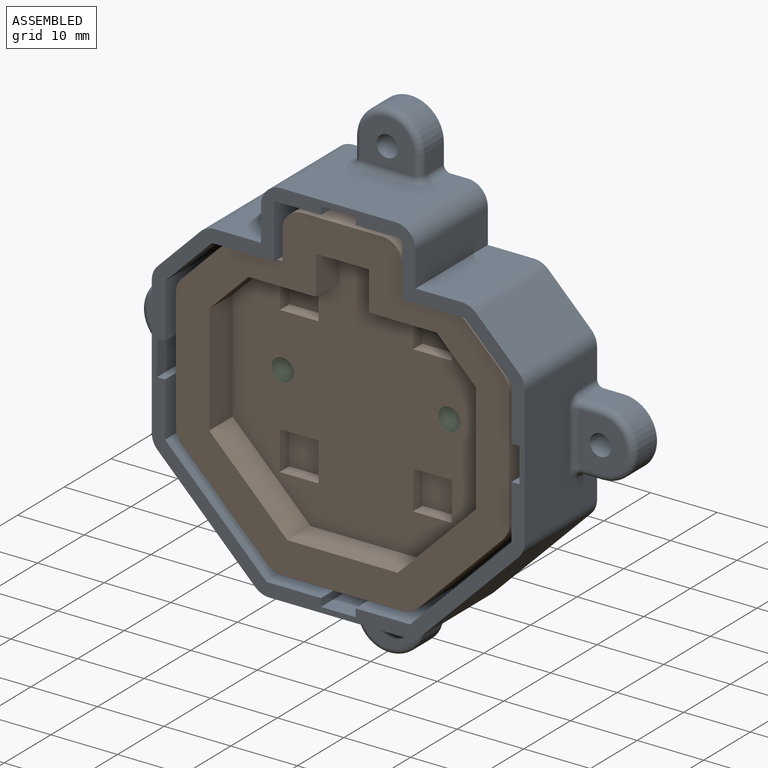
[diagram: assembled view]
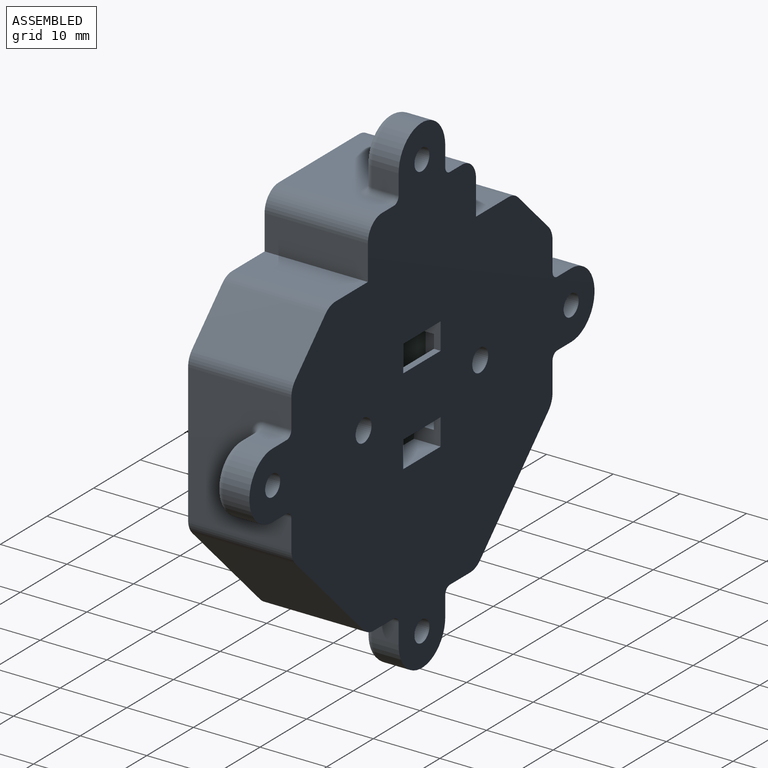
[diagram: assembled view, second angle]
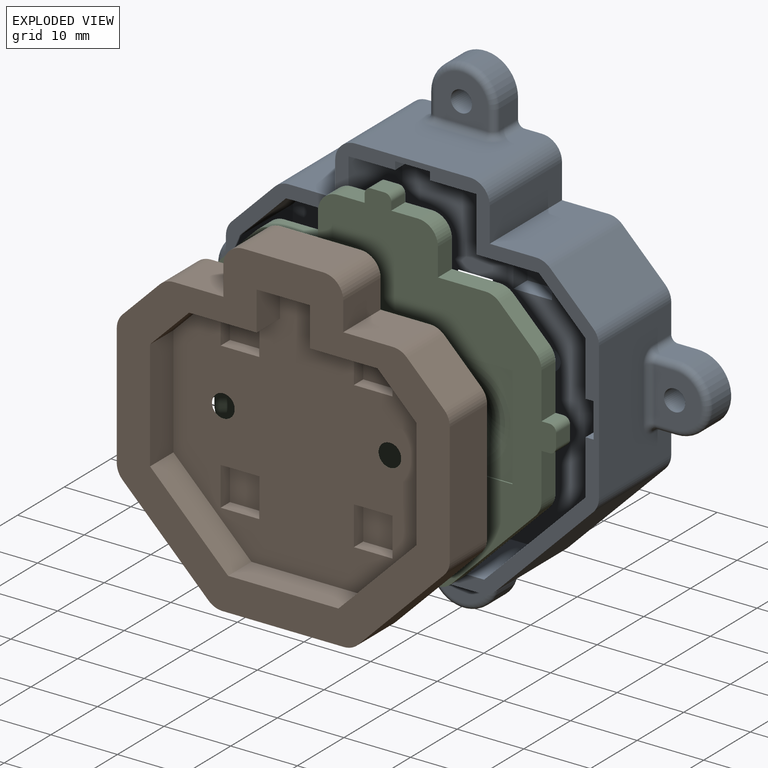
[diagram: exploded view]
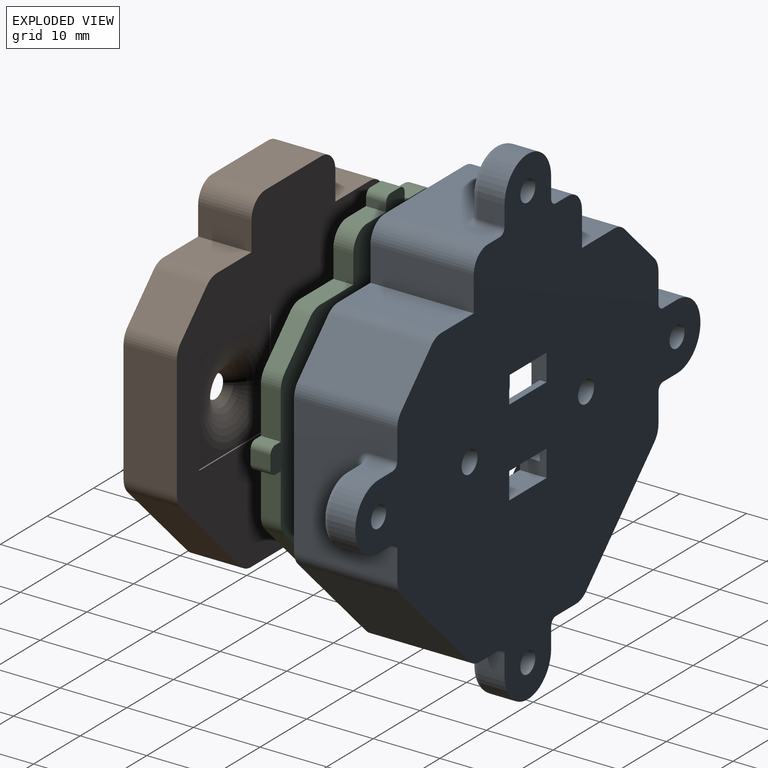
[diagram: exploded view, second angle]
ASSEMBLY  parts=3 mates=4
PART A: 142 faces, bbox 74.8x15.5x74.8 mm
  f0: plane 54.4x54.4mm, normal (0,-1,0), area 1824.8mm2, adj f1,f2,f3,f4,f8,f9,f22,f24
  f1: plane 11.5x7mm, normal (0,0,-1), area 80.5mm2, adj f0,f5,f31,f121
  f2: plane 11.5x8.17mm, normal (-1,0,0), area 93.9mm2, adj f0,f5,f35,f110
  f3: plane 11.5x8.17mm, normal (0,0,1), area 93.9mm2, adj f0,f5,f37,f115
  f4: plane 11.5x8.17mm, normal (1,0,0), area 93.9mm2, adj f0,f5,f39,f118
  f5: plane 56x56mm, normal (0,-1,0), area 346.7mm2, adj f1,f2,f3,f4,f11,f12,f13,f14
  f6: plane 8x1mm, normal (0,0,-1), area 8mm2, adj f10,f25,f27,f47
  f7: plane 8x1mm, normal (0,0,1), area 8mm2, adj f8,f9,f10,f47
  f8: plane 4x4mm, normal (-1,0,0), area 10mm2, adj f0,f7,f10,f28,f43,f47
  f9: plane 4x4mm, normal (1,0,0), area 10mm2, adj f0,f7,f10,f28,f44,f47
  f10: plane 74x74mm, normal (0,1,0), area 2729.7mm2, adj f6,f7,f8,f9,f11,f12,f13,f14
  f11: plane 15.5x6.96mm, normal (0,0,1), area 107.9mm2, adj f5,f10,f12,f55
  f12: plane 15.5x5.2mm, normal (1,0,0), area 80.6mm2, adj f5,f10,f11,f57
  f13: plane 17.2x15.5mm, normal (0,0,1), area 196.3mm2, adj f5,f10,f56,f57,f94,f96,f98,f100
  f14: plane 15.5x5.2mm, normal (-1,0,0), area 80.6mm2, adj f5,f10,f15,f56
  f15: plane 15.5x6.96mm, normal (0,0,1), area 107.9mm2, adj f5,f10,f14,f48
  f16: plane 15.5x6.44mm, normal (-0.71,0,0.71), area 141.2mm2, adj f5,f10,f48,f49
  f17: plane 20.71x15.5mm, normal (-1,0,0), area 250.7mm2, adj f5,f10,f49,f50,f102,f104,f106,f108
  f18: plane 15.5x14.64mm, normal (-0.71,0,-0.71), area 321mm2, adj f5,f10,f50,f51
  f19: plane 20.71x15.5mm, normal (0,0,-1), area 250.7mm2, adj f5,f10,f51,f52,f78,f80,f82,f84
  f20: plane 15.5x14.64mm, normal (0.71,0,-0.71), area 321mm2, adj f5,f10,f52,f53
  f21: plane 20.71x15.5mm, normal (1,0,0), area 250.7mm2, adj f5,f10,f53,f54,f86,f88,f90,f92
  f22: cylinder r=1.7mm len=4mm, axis (0,1,0), area 42.7mm2, adj f0,f10
  f23: plane 15.5x6.44mm, normal (0.71,0,0.71), area 141.2mm2, adj f5,f10,f54,f55
  f24: cylinder r=1.7mm len=4mm, axis (0,1,0), area 42.7mm2, adj f0,f10
  f25: plane 4x4mm, normal (1,0,0), area 10mm2, adj f0,f6,f10,f26,f46,f47
  f26: plane 8x4mm, normal (0,0,1), area 32mm2, adj f0,f10,f25,f27
  f27: plane 4x4mm, normal (-1,0,0), area 10mm2, adj f0,f6,f10,f26,f41,f47
  f28: plane 8x4mm, normal (0,0,-1), area 32mm2, adj f0,f8,f9,f10
  f29: plane 11.5x7.03mm, normal (0.71,0,-0.71), area 114.3mm2, adj f0,f5,f30,f40
  f30: plane 11.5x9.37mm, normal (0,0,-1), area 107.8mm2, adj f0,f5,f29,f31
  f31: plane 11.5x8.2mm, normal (1,0,0), area 94.3mm2, adj f0,f1,f5,f30
  f32: plane 11.5x7mm, normal (0,0,-1), area 80.5mm2, adj f0,f5,f33,f119
  f33: plane 11.5x8.2mm, normal (-1,0,0), area 94.3mm2, adj f0,f5,f32,f34
  f34: plane 11.5x9.37mm, normal (0,0,-1), area 107.8mm2, adj f0,f5,f33,f35
  f35: plane 11.5x7.03mm, normal (-0.71,0,-0.71), area 114.3mm2, adj f0,f2,f5,f34
  f36: plane 11.5x8.17mm, normal (-1,0,0), area 93.9mm2, adj f0,f5,f37,f111
  f37: plane 15.23x15.23mm, normal (-0.71,0,0.71), area 247.7mm2, adj f0,f3,f5,f36
  f38: plane 11.5x8.17mm, normal (0,0,1), area 93.9mm2, adj f0,f5,f39,f113
  f39: plane 15.23x15.23mm, normal (0.71,0,0.71), area 247.7mm2, adj f0,f4,f5,f38
  f40: plane 11.5x8.17mm, normal (1,0,0), area 93.9mm2, adj f0,f5,f29,f116
  f41: plane 3x2.5mm, normal (0,0,1), area 7.5mm2, adj f0,f27,f42,f47
  f42: plane 13x3mm, normal (-1,0,0), area 39mm2, adj f0,f41,f43,f47
  f43: plane 3x2.5mm, normal (0,0,-1), area 7.5mm2, adj f0,f8,f42,f47
  f44: plane 3x2.5mm, normal (0,0,-1), area 7.5mm2, adj f0,f9,f45,f47
  f45: plane 13x3mm, normal (1,0,0), area 39mm2, adj f0,f44,f46,f47
  f46: plane 3x2.5mm, normal (0,0,1), area 7.5mm2, adj f0,f25,f45,f47
  f47: plane 13x13mm, normal (0,-1,0), area 137mm2, adj f6,f7,f8,f9,f25,f27,f41,f42
  f48: cylinder r=3mm len=15.5mm, axis (0,-1,0), area 36.5mm2, adj f5,f10,f15,f16
  f49: cylinder r=3mm len=15.5mm, axis (0,1,0), area 36.5mm2, adj f5,f10,f16,f17
  f50: cylinder r=3mm len=15.5mm, axis (0,1,0), area 36.5mm2, adj f5,f10,f17,f18
  f51: cylinder r=3mm len=15.5mm, axis (0,1,0), area 36.5mm2, adj f5,f10,f18,f19
  f52: cylinder r=3mm len=15.5mm, axis (0,1,0), area 36.5mm2, adj f5,f10,f19,f20
  f53: cylinder r=3mm len=15.5mm, axis (0,1,0), area 36.5mm2, adj f5,f10,f20,f21
  f54: cylinder r=3mm len=15.5mm, axis (0,1,0), area 36.5mm2, adj f5,f10,f21,f23
  f55: cylinder r=3mm len=15.5mm, axis (0,-1,0), area 36.5mm2, adj f5,f10,f11,f23
  f56: cylinder r=3mm len=15.5mm, axis (0,1,0), area 73mm2, adj f5,f10,f13,f14
  f57: cylinder r=3mm len=15.5mm, axis (0,-1,0), area 73mm2, adj f5,f10,f12,f13
  f58: plane 4x3mm, normal (0,0,1), area 12mm2, adj f10,f59,f107,f109
  f59: cylinder r=5mm len=10mm, axis (0,1,0), area 62.8mm2, adj f10,f58,f60,f105
  f60: plane 4x3mm, normal (0,0,-1), area 12mm2, adj f10,f59,f102,f103
  f61: cylinder r=1.6mm len=5mm, axis (0,1,0), area 50.3mm2, adj f10,f62
  f62: plane 8x7mm, normal (0,-1,0), area 41.1mm2, adj f61,f103,f105,f106,f107
  f63: plane 4x3mm, normal (-1,0,0), area 12mm2, adj f10,f64,f83,f85
  f64: cylinder r=5mm len=10mm, axis (0,1,0), area 62.8mm2, adj f10,f63,f65,f81
  f65: plane 4x3mm, normal (1,0,0), area 12mm2, adj f10,f64,f78,f79
  f66: cylinder r=1.6mm len=5mm, axis (0,1,0), area 50.3mm2, adj f10,f67
  f67: plane 8x7mm, normal (0,-1,0), area 41.1mm2, adj f66,f79,f81,f82,f83
  f68: plane 4x3mm, normal (0,0,-1), area 12mm2, adj f10,f69,f91,f93
  f69: cylinder r=5mm len=10mm, axis (0,1,0), area 62.8mm2, adj f10,f68,f70,f89
  f70: plane 4x3mm, normal (0,0,1), area 12mm2, adj f10,f69,f86,f87
  f71: cylinder r=1.6mm len=5mm, axis (0,1,0), area 50.3mm2, adj f10,f72
  f72: plane 8x7mm, normal (0,-1,0), area 41.1mm2, adj f71,f87,f89,f90,f91
  f73: plane 4x3mm, normal (1,0,0), area 12mm2, adj f10,f74,f99,f101
  f74: cylinder r=5mm len=10mm, axis (0,1,0), area 62.8mm2, adj f10,f73,f75,f97
  f75: plane 4x3mm, normal (-1,0,0), area 12mm2, adj f10,f74,f94,f95
  f76: cylinder r=1.6mm len=5mm, axis (0,1,0), area 50.3mm2, adj f10,f77
  f77: plane 8x7mm, normal (0,-1,0), area 41.1mm2, adj f76,f95,f97,f98,f99
  f78: cylinder r=1mm len=4mm, axis (0,-1,0), area 6.3mm2, adj f10,f19,f65,f80
  f79: cylinder r=1mm len=3mm, axis (0,0,-1), area 4.7mm2, adj f65,f67,f80,f81
  f80: torus R=2mm, axis (0,0,1), area 3.4mm2, adj f19,f78,f79,f82
  f81: torus R=4mm, axis (0,-1,0), area 22.9mm2, adj f64,f67,f79,f83
  f82: cylinder r=1mm len=8mm, axis (1,0,0), area 12.6mm2, adj f19,f67,f80,f84
  f83: cylinder r=1mm len=3mm, axis (0,0,1), area 4.7mm2, adj f63,f67,f81,f84
  f84: torus R=2mm, axis (0,0,1), area 3.4mm2, adj f19,f82,f83,f85
  f85: cylinder r=1mm len=4mm, axis (0,1,0), area 6.3mm2, adj f10,f19,f63,f84
  f86: cylinder r=1mm len=4mm, axis (0,-1,0), area 6.3mm2, adj f10,f21,f70,f88
  f87: cylinder r=1mm len=3mm, axis (1,0,0), area 4.7mm2, adj f70,f72,f88,f89
  f88: torus R=2mm, axis (-1,0,0), area 3.4mm2, adj f21,f86,f87,f90
  f89: torus R=4mm, axis (0,-1,0), area 22.9mm2, adj f69,f72,f87,f91
  f90: cylinder r=1mm len=8mm, axis (0,0,1), area 12.6mm2, adj f21,f72,f88,f92
  f91: cylinder r=1mm len=3mm, axis (-1,0,0), area 4.7mm2, adj f68,f72,f89,f92
  f92: torus R=2mm, axis (-1,0,0), area 3.4mm2, adj f21,f90,f91,f93
  f93: cylinder r=1mm len=4mm, axis (0,1,0), area 6.3mm2, adj f10,f21,f68,f92
  f94: cylinder r=1mm len=4mm, axis (0,-1,0), area 6.3mm2, adj f10,f13,f75,f96
  f95: cylinder r=1mm len=3mm, axis (0,0,1), area 4.7mm2, adj f75,f77,f96,f97
  f96: torus R=2mm, axis (0,0,-1), area 3.4mm2, adj f13,f94,f95,f98
  f97: torus R=4mm, axis (0,-1,0), area 22.9mm2, adj f74,f77,f95,f99
  f98: cylinder r=1mm len=8mm, axis (-1,0,0), area 12.6mm2, adj f13,f77,f96,f100
  f99: cylinder r=1mm len=3mm, axis (0,0,-1), area 4.7mm2, adj f73,f77,f97,f100
  f100: torus R=2mm, axis (0,0,-1), area 3.4mm2, adj f13,f98,f99,f101
  f101: cylinder r=1mm len=4mm, axis (0,1,0), area 6.3mm2, adj f10,f13,f73,f100
  f102: cylinder r=1mm len=4mm, axis (0,-1,0), area 6.3mm2, adj f10,f17,f60,f104
  f103: cylinder r=1mm len=3mm, axis (-1,0,0), area 4.7mm2, adj f60,f62,f104,f105
  f104: torus R=2mm, axis (1,0,0), area 3.4mm2, adj f17,f102,f103,f106
  f105: torus R=4mm, axis (0,-1,0), area 22.9mm2, adj f59,f62,f103,f107
  f106: cylinder r=1mm len=8mm, axis (0,0,-1), area 12.6mm2, adj f17,f62,f104,f108
  f107: cylinder r=1mm len=3mm, axis (1,0,0), area 4.7mm2, adj f58,f62,f105,f108
  f108: torus R=2mm, axis (1,0,0), area 3.4mm2, adj f17,f106,f107,f109
  f109: cylinder r=1mm len=4mm, axis (0,1,0), area 6.3mm2, adj f10,f17,f58,f108
  f110: plane 11.5x1.2mm, normal (0,0,-1), area 13.8mm2, adj f0,f2,f5,f112
  f111: plane 11.5x1.2mm, normal (0,0,1), area 13.8mm2, adj f0,f5,f36,f112
  f112: plane 11.5x5.2mm, normal (-1,0,0), area 59.8mm2, adj f0,f5,f110,f111
  f113: plane 11.5x1.2mm, normal (1,0,0), area 13.8mm2, adj f0,f5,f38,f114
  f114: plane 11.5x5.2mm, normal (0,0,1), area 59.8mm2, adj f0,f5,f113,f115
  f115: plane 11.5x1.2mm, normal (-1,0,0), area 13.8mm2, adj f0,f3,f5,f114
  f116: plane 11.5x1.2mm, normal (0,0,-1), area 13.8mm2, adj f0,f5,f40,f117
  f117: plane 11.5x5.2mm, normal (1,0,0), area 59.8mm2, adj f0,f5,f116,f118
  f118: plane 11.5x1.2mm, normal (0,0,1), area 13.8mm2, adj f0,f4,f5,f117
  f119: plane 11.5x1.2mm, normal (-1,0,0), area 13.8mm2, adj f0,f5,f32,f120
  f120: plane 11.5x5.2mm, normal (0,0,-1), area 59.8mm2, adj f0,f5,f119,f121
  f121: plane 11.5x1.2mm, normal (1,0,0), area 13.8mm2, adj f0,f1,f5,f120
  f122: plane 5.8x3mm, normal (0,0,1), area 17.4mm2, adj f0,f123,f125,f126
  f123: plane 5.8x3mm, normal (-1,0,0), area 17.4mm2, adj f0,f122,f124,f126
  f124: plane 5.8x3mm, normal (0,0,-1), area 17.4mm2, adj f0,f123,f125,f126
  f125: plane 5.8x3mm, normal (1,0,0), area 17.4mm2, adj f0,f122,f124,f126
  f126: plane 5.8x5.8mm, normal (0,-1,0), area 33.6mm2, adj f122,f123,f124,f125
  f127: plane 5.8x3mm, normal (0,0,1), area 17.4mm2, adj f0,f128,f130,f131
  f128: plane 5.8x3mm, normal (-1,0,0), area 17.4mm2, adj f0,f127,f129,f131
  f129: plane 5.8x3mm, normal (0,0,-1), area 17.4mm2, adj f0,f128,f130,f131
  f130: plane 5.8x3mm, normal (1,0,0), area 17.4mm2, adj f0,f127,f129,f131
  f131: plane 5.8x5.8mm, normal (0,-1,0), area 33.6mm2, adj f127,f128,f129,f130
  f132: plane 5.8x3mm, normal (0,0,1), area 17.4mm2, adj f0,f133,f135,f136
  f133: plane 5.8x3mm, normal (-1,0,0), area 17.4mm2, adj f0,f132,f134,f136
  f134: plane 5.8x3mm, normal (0,0,-1), area 17.4mm2, adj f0,f133,f135,f136
  f135: plane 5.8x3mm, normal (1,0,0), area 17.4mm2, adj f0,f132,f134,f136
  f136: plane 5.8x5.8mm, normal (0,-1,0), area 33.6mm2, adj f132,f133,f134,f135
  f137: plane 5.8x3mm, normal (0,0,1), area 17.4mm2, adj f0,f138,f140,f141
  f138: plane 5.8x3mm, normal (-1,0,0), area 17.4mm2, adj f0,f137,f139,f141
  f139: plane 5.8x3mm, normal (0,0,-1), area 17.4mm2, adj f0,f138,f140,f141
  f140: plane 5.8x3mm, normal (1,0,0), area 17.4mm2, adj f0,f137,f139,f141
  f141: plane 5.8x5.8mm, normal (0,-1,0), area 33.6mm2, adj f137,f138,f139,f140
PART B: 69 faces, bbox 50x8x50 mm
  f0: plane 40x40mm, normal (0,-1,0), area 1088.3mm2, adj f14,f15,f16,f17,f18,f19,f20,f21
  f1: plane 50x50mm, normal (0,1,0), area 1517.9mm2, adj f2,f3,f4,f5,f6,f7,f8,f9
  f2: plane 8x7.44mm, normal (0,0,1), area 59.5mm2, adj f1,f13,f26,f37
  f3: plane 8x5.57mm, normal (-0.71,0,0.71), area 63mm2, adj f1,f26,f37,f38
  f4: plane 18.23x8mm, normal (-1,0,0), area 145.8mm2, adj f1,f26,f38,f39
  f5: plane 12.89x12.89mm, normal (-0.71,0,-0.71), area 145.8mm2, adj f1,f26,f39,f40
  f6: plane 18.23x8mm, normal (0,0,-1), area 145.8mm2, adj f1,f26,f40,f41
  f7: plane 12.89x12.89mm, normal (0.71,0,-0.71), area 145.8mm2, adj f1,f26,f41,f42
  f8: plane 18.23x8mm, normal (1,0,0), area 145.8mm2, adj f1,f26,f42,f43
  f9: plane 8x5.57mm, normal (0.71,0,0.71), area 63mm2, adj f1,f26,f43,f44
  f10: plane 8x7.44mm, normal (0,0,1), area 59.5mm2, adj f1,f11,f26,f44
  f11: plane 8x4.32mm, normal (1,0,0), area 34.6mm2, adj f1,f10,f26,f45
  f12: plane 12x8mm, normal (0,0,1), area 96mm2, adj f1,f26,f45,f46
  f13: plane 8x4.32mm, normal (-1,0,0), area 34.6mm2, adj f1,f2,f26,f46
  f14: plane 5.86x5mm, normal (-1,0,0), area 29.3mm2, adj f0,f15,f25,f26
  f15: plane 10.14x5mm, normal (0,0,-1), area 50.7mm2, adj f0,f14,f16,f26
  f16: plane 5.86x5.86mm, normal (-0.71,0,-0.71), area 41.4mm2, adj f0,f15,f17,f26
  f17: plane 16.57x5mm, normal (-1,0,0), area 82.8mm2, adj f0,f16,f18,f26
  f18: plane 11.72x11.72mm, normal (-0.71,0,0.71), area 82.8mm2, adj f0,f17,f19,f26
  f19: plane 16.57x5mm, normal (0,0,1), area 82.8mm2, adj f0,f18,f20,f26
  f20: plane 11.72x11.72mm, normal (0.71,0,0.71), area 82.8mm2, adj f0,f19,f21,f26
  f21: plane 16.57x5mm, normal (1,0,0), area 82.8mm2, adj f0,f20,f22,f26
  f22: plane 5.86x5.86mm, normal (0.71,0,-0.71), area 41.4mm2, adj f0,f21,f23,f26
  f23: plane 10.14x5mm, normal (0,0,-1), area 50.7mm2, adj f0,f22,f24,f26
  f24: plane 5.86x5mm, normal (1,0,0), area 29.3mm2, adj f0,f23,f25,f26
  f25: plane 8x5mm, normal (0,0,-1), area 40mm2, adj f0,f14,f24,f26
  f26: plane 50x50mm, normal (0,-1,0), area 751.2mm2, adj f2,f3,f4,f5,f6,f7,f8,f9
  f27: plane 15.4x0.2mm, normal (0,0,-1), area 3.1mm2, adj f1,f28,f30,f31
  f28: plane 15.4x0.2mm, normal (-1,0,0), area 3.1mm2, adj f1,f27,f29,f31
  f29: plane 15.4x0.2mm, normal (0,0,1), area 3.1mm2, adj f1,f28,f30,f31
  f30: plane 15.4x0.2mm, normal (1,0,0), area 3.1mm2, adj f1,f27,f29,f31
  f31: plane 15.4x15.4mm, normal (0,1,0), area 69.7mm2, adj f27,f28,f29,f30,f67
  f32: plane 15.4x0.2mm, normal (0,0,-1), area 3.1mm2, adj f1,f33,f35,f36
  f33: plane 15.4x0.2mm, normal (-1,0,0), area 3.1mm2, adj f1,f32,f34,f36
  f34: plane 15.4x0.2mm, normal (0,0,1), area 3.1mm2, adj f1,f33,f35,f36
  f35: plane 15.4x0.2mm, normal (1,0,0), area 3.1mm2, adj f1,f32,f34,f36
  f36: plane 15.4x15.4mm, normal (0,1,0), area 69.7mm2, adj f32,f33,f34,f35,f68
  f37: cylinder r=3mm len=8mm, axis (0,-1,0), area 18.8mm2, adj f1,f2,f3,f26
  f38: cylinder r=3mm len=8mm, axis (0,1,0), area 18.8mm2, adj f1,f3,f4,f26
  f39: cylinder r=3mm len=8mm, axis (0,1,0), area 18.8mm2, adj f1,f4,f5,f26
  f40: cylinder r=3mm len=8mm, axis (0,1,0), area 18.8mm2, adj f1,f5,f6,f26
  f41: cylinder r=3mm len=8mm, axis (0,1,0), area 18.8mm2, adj f1,f6,f7,f26
  f42: cylinder r=3mm len=8mm, axis (0,1,0), area 18.8mm2, adj f1,f7,f8,f26
  f43: cylinder r=3mm len=8mm, axis (0,1,0), area 18.8mm2, adj f1,f8,f9,f26
  f44: cylinder r=3mm len=8mm, axis (0,-1,0), area 18.8mm2, adj f1,f9,f10,f26
  f45: cylinder r=3mm len=8mm, axis (0,1,0), area 37.7mm2, adj f1,f11,f12,f26
  f46: cylinder r=3mm len=8mm, axis (0,-1,0), area 37.7mm2, adj f1,f12,f13,f26
  f47: plane 5.8x2mm, normal (0,0,-1), area 11.6mm2, adj f0,f48,f50,f51
  f48: plane 5.8x2mm, normal (1,0,0), area 11.6mm2, adj f0,f47,f49,f51
  f49: plane 5.8x2mm, normal (0,0,1), area 11.6mm2, adj f0,f48,f50,f51
  f50: plane 5.8x2mm, normal (-1,0,0), area 11.6mm2, adj f0,f47,f49,f51
  f51: plane 5.8x5.8mm, normal (0,-1,0), area 33.6mm2, adj f47,f48,f49,f50
  f52: plane 5.8x2mm, normal (0,0,-1), area 11.6mm2, adj f0,f53,f55,f56
  f53: plane 5.8x2mm, normal (1,0,0), area 11.6mm2, adj f0,f52,f54,f56
  f54: plane 5.8x2mm, normal (0,0,1), area 11.6mm2, adj f0,f53,f55,f56
  f55: plane 5.8x2mm, normal (-1,0,0), area 11.6mm2, adj f0,f52,f54,f56
  f56: plane 5.8x5.8mm, normal (0,-1,0), area 33.6mm2, adj f52,f53,f54,f55
  f57: plane 5.8x2mm, normal (0,0,-1), area 11.6mm2, adj f0,f58,f60,f61
  f58: plane 5.8x2mm, normal (1,0,0), area 11.6mm2, adj f0,f57,f59,f61
  f59: plane 5.8x2mm, normal (0,0,1), area 11.6mm2, adj f0,f58,f60,f61
  f60: plane 5.8x2mm, normal (-1,0,0), area 11.6mm2, adj f0,f57,f59,f61
  f61: plane 5.8x5.8mm, normal (0,-1,0), area 33.6mm2, adj f57,f58,f59,f60
  f62: plane 5.8x2mm, normal (0,0,1), area 11.6mm2, adj f0,f63,f65,f66
  f63: plane 5.8x2mm, normal (-1,0,0), area 11.6mm2, adj f0,f62,f64,f66
  f64: plane 5.8x2mm, normal (0,0,-1), area 11.6mm2, adj f0,f63,f65,f66
  f65: plane 5.8x2mm, normal (1,0,0), area 11.6mm2, adj f0,f62,f64,f66
  f66: plane 5.8x5.8mm, normal (0,-1,0), area 33.6mm2, adj f62,f63,f64,f65
  f67: torus R=7.3mm, axis (0,1,0), area 174.6mm2, adj f0,f31
  f68: torus R=7.3mm, axis (0,1,0), area 174.6mm2, adj f0,f36
PART C: 80 faces, bbox 53.5x7.2x53.5 mm
  f0: plane 53.5x53.5mm, normal (0,-1,0), area 1482.4mm2, adj f2,f3,f4,f5,f6,f7,f8,f9
  f1: plane 53.5x53.5mm, normal (0,1,0), area 1804mm2, adj f2,f3,f4,f5,f6,f7,f8,f9
  f2: plane 6.93x3mm, normal (-1,0,0), area 20.8mm2, adj f0,f1,f3,f57
  f3: plane 3x1.2mm, normal (0,0,1), area 3.6mm2, adj f0,f1,f2,f72
  f4: plane 3x2mm, normal (-1,0,0), area 6mm2, adj f0,f1,f72,f73
  f5: plane 3x1.2mm, normal (0,0,-1), area 3.6mm2, adj f0,f1,f6,f73
  f6: plane 6.93x3mm, normal (-1,0,0), area 20.8mm2, adj f0,f1,f5,f50
  f7: plane 12.62x12.62mm, normal (-0.71,0,-0.71), area 53.6mm2, adj f0,f1,f50,f51
  f8: plane 6.93x3mm, normal (0,0,-1), area 20.8mm2, adj f0,f1,f9,f51
  f9: plane 3x1.2mm, normal (-1,0,0), area 3.6mm2, adj f0,f1,f8,f78
  f10: plane 3x2mm, normal (0,0,-1), area 6mm2, adj f0,f1,f78,f79
  f11: plane 3x1.2mm, normal (1,0,0), area 3.6mm2, adj f0,f1,f12,f79
  f12: plane 6.93x3mm, normal (0,0,-1), area 20.8mm2, adj f0,f1,f11,f52
  f13: plane 12.62x12.62mm, normal (0.71,0,-0.71), area 53.6mm2, adj f0,f1,f52,f53
  f14: plane 6.93x3mm, normal (1,0,0), area 20.8mm2, adj f0,f1,f15,f53
  f15: plane 3x1.2mm, normal (0,0,-1), area 3.6mm2, adj f0,f1,f14,f74
  f16: plane 3x2mm, normal (1,0,0), area 6mm2, adj f0,f1,f74,f75
  f17: plane 3x1.2mm, normal (0,0,1), area 3.6mm2, adj f0,f1,f18,f75
  f18: plane 6.93x3mm, normal (1,0,0), area 20.8mm2, adj f0,f1,f17,f54
  f19: plane 5.43x5.43mm, normal (0.71,0,0.71), area 23.1mm2, adj f0,f1,f54,f55
  f20: plane 7.12x3mm, normal (0,0,1), area 21.4mm2, adj f0,f1,f21,f55
  f21: plane 4.19x3mm, normal (1,0,0), area 12.6mm2, adj f0,f1,f20,f59
  f22: plane 4x3mm, normal (0,0,1), area 12mm2, adj f0,f1,f23,f59
  f23: plane 3x1.2mm, normal (1,0,0), area 3.6mm2, adj f0,f1,f22,f76
  f24: plane 3x2mm, normal (0,0,1), area 6mm2, adj f0,f1,f76,f77
  f25: plane 3x1.2mm, normal (-1,0,0), area 3.6mm2, adj f0,f1,f26,f77
  f26: plane 4x3mm, normal (0,0,1), area 12mm2, adj f0,f1,f25,f58
  f27: plane 4.19x3mm, normal (-1,0,0), area 12.6mm2, adj f0,f1,f28,f58
  f28: plane 7.12x3mm, normal (0,0,1), area 21.4mm2, adj f0,f1,f27,f56
  f29: plane 5.43x5.43mm, normal (-0.71,0,0.71), area 23.1mm2, adj f0,f1,f56,f57
  f30: plane 5.8x2mm, normal (0,0,1), area 11.6mm2, adj f1,f31,f33,f34
  f31: plane 5.8x2mm, normal (1,0,0), area 11.6mm2, adj f1,f30,f32,f34
  f32: plane 5.8x2mm, normal (0,0,-1), area 11.6mm2, adj f1,f31,f33,f34
  f33: plane 5.8x2mm, normal (-1,0,0), area 11.6mm2, adj f1,f30,f32,f34
  f34: plane 5.8x5.8mm, normal (0,1,0), area 33.6mm2, adj f30,f31,f32,f33
  f35: plane 5.8x2mm, normal (0,0,1), area 11.6mm2, adj f1,f36,f38,f39
  f36: plane 5.8x2mm, normal (1,0,0), area 11.6mm2, adj f1,f35,f37,f39
  f37: plane 5.8x2mm, normal (0,0,-1), area 11.6mm2, adj f1,f36,f38,f39
  f38: plane 5.8x2mm, normal (-1,0,0), area 11.6mm2, adj f1,f35,f37,f39
  f39: plane 5.8x5.8mm, normal (0,1,0), area 33.6mm2, adj f35,f36,f37,f38
  f40: plane 5.8x2mm, normal (0,0,1), area 11.6mm2, adj f1,f41,f43,f44
  f41: plane 5.8x2mm, normal (1,0,0), area 11.6mm2, adj f1,f40,f42,f44
  f42: plane 5.8x2mm, normal (0,0,-1), area 11.6mm2, adj f1,f41,f43,f44
  f43: plane 5.8x2mm, normal (-1,0,0), area 11.6mm2, adj f1,f40,f42,f44
  f44: plane 5.8x5.8mm, normal (0,1,0), area 33.6mm2, adj f40,f41,f42,f43
  f45: plane 5.8x2mm, normal (0,0,1), area 11.6mm2, adj f1,f46,f48,f49
  f46: plane 5.8x2mm, normal (1,0,0), area 11.6mm2, adj f1,f45,f47,f49
  f47: plane 5.8x2mm, normal (0,0,-1), area 11.6mm2, adj f1,f46,f48,f49
  f48: plane 5.8x2mm, normal (-1,0,0), area 11.6mm2, adj f1,f45,f47,f49
  f49: plane 5.8x5.8mm, normal (0,1,0), area 33.6mm2, adj f45,f46,f47,f48
  f50: cylinder r=3mm len=3mm, axis (0,1,0), area 7.1mm2, adj f0,f1,f6,f7
  f51: cylinder r=3mm len=3mm, axis (0,1,0), area 7.1mm2, adj f0,f1,f7,f8
  f52: cylinder r=3mm len=3mm, axis (0,1,0), area 7.1mm2, adj f0,f1,f12,f13
  f53: cylinder r=3mm len=3mm, axis (0,1,0), area 7.1mm2, adj f0,f1,f13,f14
  f54: cylinder r=3mm len=3mm, axis (0,1,0), area 7.1mm2, adj f0,f1,f18,f19
  f55: cylinder r=3mm len=3mm, axis (0,-1,0), area 7.1mm2, adj f0,f1,f19,f20
  f56: cylinder r=3mm len=3mm, axis (0,-1,0), area 7.1mm2, adj f0,f1,f28,f29
  f57: cylinder r=3mm len=3mm, axis (0,1,0), area 7.1mm2, adj f0,f1,f2,f29
  f58: cylinder r=3mm len=3mm, axis (0,-1,0), area 14.1mm2, adj f0,f1,f26,f27
  f59: cylinder r=3mm len=3mm, axis (0,-1,0), area 14.1mm2, adj f0,f1,f21,f22
  f60: plane 15.4x0.2mm, normal (0,0,-1), area 3.1mm2, adj f0,f61,f63,f64
  f61: plane 15.4x0.2mm, normal (1,0,0), area 3.1mm2, adj f0,f60,f62,f64
  f62: plane 15.4x0.2mm, normal (0,0,1), area 3.1mm2, adj f0,f61,f63,f64
  f63: plane 15.4x0.2mm, normal (-1,0,0), area 3.1mm2, adj f0,f60,f62,f64
  f64: plane 15.4x15.4mm, normal (0,-1,0), area 69.7mm2, adj f60,f61,f62,f63,f70
  f65: plane 15.4x0.2mm, normal (0,0,-1), area 3.1mm2, adj f0,f66,f68,f69
  f66: plane 15.4x0.2mm, normal (1,0,0), area 3.1mm2, adj f0,f65,f67,f69
  f67: plane 15.4x0.2mm, normal (0,0,1), area 3.1mm2, adj f0,f66,f68,f69
  f68: plane 15.4x0.2mm, normal (-1,0,0), area 3.1mm2, adj f0,f65,f67,f69
  f69: plane 15.4x15.4mm, normal (0,-1,0), area 69.7mm2, adj f65,f66,f67,f68,f71
  f70: torus R=7.3mm, axis (0,-1,0), area 174.6mm2, adj f1,f64
  f71: torus R=7.3mm, axis (0,-1,0), area 174.6mm2, adj f1,f69
  f72: cylinder r=1mm len=3mm, axis (0,1,0), area 4.7mm2, adj f0,f1,f3,f4
  f73: cylinder r=1mm len=3mm, axis (0,1,0), area 4.7mm2, adj f0,f1,f4,f5
  f74: cylinder r=1mm len=3mm, axis (0,1,0), area 4.7mm2, adj f0,f1,f15,f16
  f75: cylinder r=1mm len=3mm, axis (0,1,0), area 4.7mm2, adj f0,f1,f16,f17
  f76: cylinder r=1mm len=3mm, axis (0,1,0), area 4.7mm2, adj f0,f1,f23,f24
  f77: cylinder r=1mm len=3mm, axis (0,-1,0), area 4.7mm2, adj f0,f1,f24,f25
  f78: cylinder r=1mm len=3mm, axis (0,1,0), area 4.7mm2, adj f0,f1,f9,f10
  f79: cylinder r=1mm len=3mm, axis (0,-1,0), area 4.7mm2, adj f0,f1,f10,f11
PLACE A t=(-27.53,-44.97,41.15)mm
PLACE B t=(-27.53,-51.57,41.15)mm
PLACE C t=(-27.53,-48.97,41.15)mm
MATE fastened C.f70 <-> B.f68  axis (0,-1,0) through (-15.03,-51.77,41.15)mm
MATE slider C.f71 <-> A.f22  axis (0,1,0) through (-40.03,-48.97,41.15)mm
MATE fastened C.f70 <-> A.f24  axis (0,1,0) through (-15.03,-48.97,41.15)mm
MATE slider C.f70 <-> A.f24  axis (0,1,0) through (-15.03,-48.97,41.15)mm
